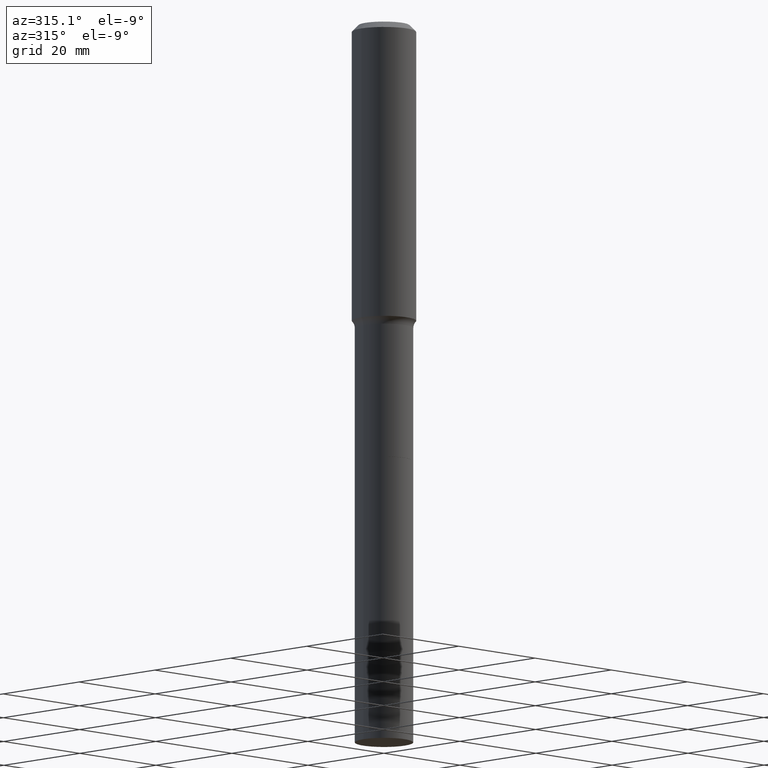
[diagram: clean part render]
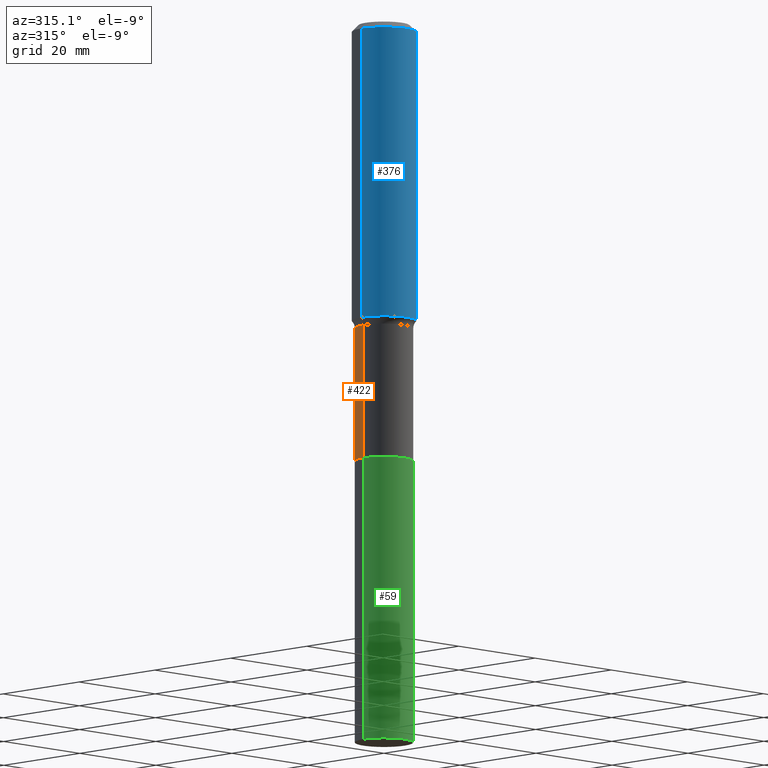
[diagram: same view with three faces highlighted in distinct colors, each labeled with its STEP entity id]
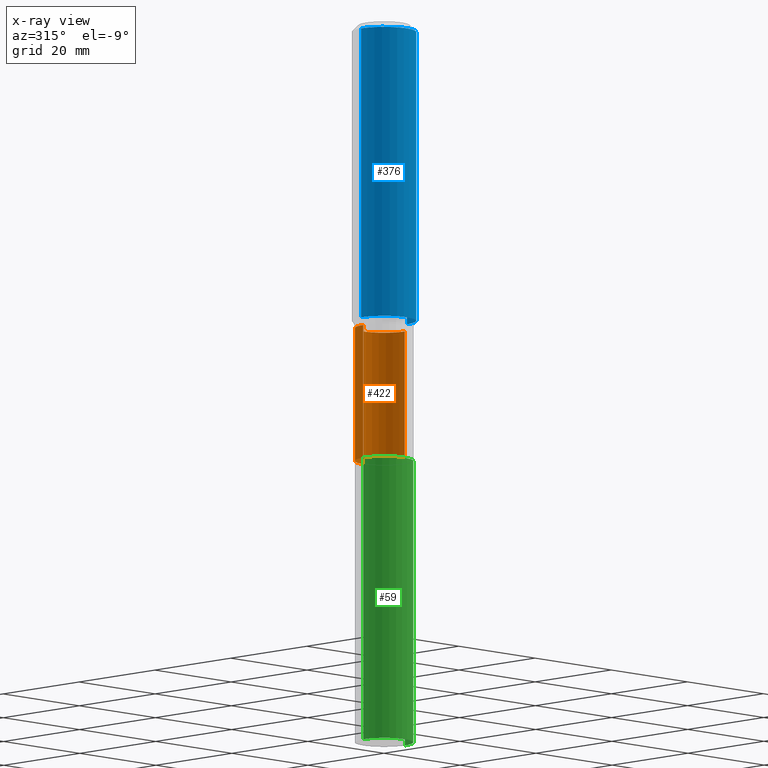
[diagram: x-ray of the same camera — body ghosted, the three highlighted faces saturated]
A machine part, auxiliary view with three faces highlighted in distinct colors.
The next image is the same camera in x-ray (body ghosted, the three faces saturated) — at least one of them is partly hidden behind the body in this view.
Their STEP definitions:

[orange] entity #422 — the highlighted cylindrical surface (edge-blend (fillet) strip) has radius 5.4496 mm, axis along (-0, 0, 1).
#12 = CIRCLE ( 'NONE', #315, 0.2145499999999999907 ) ;
#18 = ORIENTED_EDGE ( 'NONE', *, *, #265, .F. ) ;
#25 = EDGE_CURVE ( 'NONE', #500, #95, #401, .T. ) ;
#52 = CARTESIAN_POINT ( 'NONE',  ( 7.895196040768714687E-29, -1.127224750245509741E-14, -3.228500000000000814 ) ) ;
#64 = EDGE_CURVE ( 'NONE', #146, #497, #190, .T. ) ;
#87 = CARTESIAN_POINT ( 'NONE',  ( -0.2145499999999998797, -8.029096373836263825E-15, -2.244000000000000217 ) ) ;
#95 = VERTEX_POINT ( 'NONE', #87 ) ;
#130 = DIRECTION ( 'NONE',  ( -2.445468806185136597E-29, 3.491481338843145583E-15, 1.000000000000000000 ) ) ;
#142 = DIRECTION ( 'NONE',  ( -2.445468806185136597E-29, 3.491481338843145583E-15, 1.000000000000000000 ) ) ;
#146 = VERTEX_POINT ( 'NONE', #518 ) ;
#182 = DIRECTION ( 'NONE',  ( -2.445468806185136597E-29, 3.491481338843145583E-15, 1.000000000000000000 ) ) ;
#184 = CARTESIAN_POINT ( 'NONE',  ( 5.487632001079447088E-29, -7.834884124364020406E-15, -2.244000000000000217 ) ) ;
#190 = LINE ( 'NONE', #354, #414 ) ;
#193 = CARTESIAN_POINT ( 'NONE',  ( -0.2145499999999999630, -8.029096373836262248E-15, -3.228500000000000814 ) ) ;
#199 = DIRECTION ( 'NONE',  ( -2.445468806185136877E-29, 3.491481338843145188E-15, 1.000000000000000000 ) ) ;
#230 = DIRECTION ( 'NONE',  ( 1.000000000000000000, -6.982962677686263555E-15, 0.000000000000000000 ) ) ;
#261 = CARTESIAN_POINT ( 'NONE',  ( 0.000000000000000000, 0.000000000000000000, 0.000000000000000000 ) ) ;
#265 = EDGE_CURVE ( 'NONE', #497, #95, #438, .T. ) ;
#272 = ORIENTED_EDGE ( 'NONE', *, *, #363, .T. ) ;
#315 = AXIS2_PLACEMENT_3D ( 'NONE', #52, #142, #454 ) ;
#338 = FACE_OUTER_BOUND ( 'NONE', #395, .T. ) ;
#352 = ORIENTED_EDGE ( 'NONE', *, *, #25, .T. ) ;
#354 = CARTESIAN_POINT ( 'NONE',  ( 0.2145499999999999352, -1.498194642497588005E-15, 1.046183727247017794E-29 ) ) ;
#363 = EDGE_CURVE ( 'NONE', #146, #500, #12, .T. ) ;
#390 = ORIENTED_EDGE ( 'NONE', *, *, #64, .F. ) ;
#395 = EDGE_LOOP ( 'NONE', ( #272, #352, #18, #390 ) ) ;
#397 = CARTESIAN_POINT ( 'NONE',  ( -0.2145499999999999352, 1.524469439573294488E-15, -1.055357523614189686E-29 ) ) ;
#398 = AXIS2_PLACEMENT_3D ( 'NONE', #261, #130, #417 ) ;
#401 = LINE ( 'NONE', #397, #483 ) ;
#414 = VECTOR ( 'NONE', #199, 39.37007874015748143 ) ;
#417 = DIRECTION ( 'NONE',  ( 1.000000000000000000, -6.982962677686266711E-15, 4.876176775795936353E-29 ) ) ;
#421 = AXIS2_PLACEMENT_3D ( 'NONE', #184, #182, #230 ) ;
#422 = ADVANCED_FACE ( 'NONE', ( #338 ), #490, .T. ) ;
#438 = CIRCLE ( 'NONE', #421, 0.2145499999999998797 ) ;
#454 = DIRECTION ( 'NONE',  ( 1.000000000000000000, -6.982962677686264344E-15, 0.000000000000000000 ) ) ;
#474 = CARTESIAN_POINT ( 'NONE',  ( 0.2145499999999998797, -9.333078766861606044E-15, -2.244000000000000217 ) ) ;
#483 = VECTOR ( 'NONE', #514, 39.37007874015748143 ) ;
#490 = CYLINDRICAL_SURFACE ( 'NONE', #398, 0.2145499999999999352 ) ;
#497 = VERTEX_POINT ( 'NONE', #474 ) ;
#500 = VERTEX_POINT ( 'NONE', #193 ) ;
#514 = DIRECTION ( 'NONE',  ( -2.445468806185136877E-29, 3.491481338843145188E-15, 1.000000000000000000 ) ) ;
#518 = CARTESIAN_POINT ( 'NONE',  ( 0.2145499999999999907, -1.277044214495268620E-14, -3.228500000000000814 ) ) ;

[blue] entity #376 — the highlighted cylindrical surface (edge-blend (fillet) strip) has radius 5.9995 mm, axis along (-0, 0, 1).
#10 = DIRECTION ( 'NONE',  ( 1.000000000000000000, -6.982962677686266711E-15, 4.876176775795936353E-29 ) ) ;
#11 = ORIENTED_EDGE ( 'NONE', *, *, #303, .T. ) ;
#19 = CARTESIAN_POINT ( 'NONE',  ( 0.000000000000000000, 0.000000000000000000, 0.000000000000000000 ) ) ;
#47 = DIRECTION ( 'NONE',  ( -2.445468806185136877E-29, 3.491481338843145188E-15, 1.000000000000000000 ) ) ;
#49 = LINE ( 'NONE', #425, #288 ) ;
#120 = EDGE_CURVE ( 'NONE', #431, #279, #366, .T. ) ;
#132 = AXIS2_PLACEMENT_3D ( 'NONE', #430, #196, #236 ) ;
#180 = FACE_OUTER_BOUND ( 'NONE', #433, .T. ) ;
#185 = ORIENTED_EDGE ( 'NONE', *, *, #120, .F. ) ;
#186 = VECTOR ( 'NONE', #47, 39.37007874015748143 ) ;
#196 = DIRECTION ( 'NONE',  ( -2.445468806185136597E-29, 3.491481338843145583E-15, 1.000000000000000000 ) ) ;
#200 = AXIS2_PLACEMENT_3D ( 'NONE', #480, #287, #330 ) ;
#216 = CARTESIAN_POINT ( 'NONE',  ( 0.2362000000000002709, -9.293172459752528663E-15, -2.189270379378770226 ) ) ;
#217 = CARTESIAN_POINT ( 'NONE',  ( 0.2361999999999999933, -1.814313362916447440E-15, -0.04724000000000030258 ) ) ;
#225 = CARTESIAN_POINT ( 'NONE',  ( -0.2362000000000001321, 1.678301941865357577E-15, -1.161852468318209457E-29 ) ) ;
#232 = VERTEX_POINT ( 'NONE', #216 ) ;
#236 = DIRECTION ( 'NONE',  ( 1.000000000000000000, -6.982962677686269077E-15, 0.000000000000000000 ) ) ;
#258 = CIRCLE ( 'NONE', #132, 0.2362000000000002709 ) ;
#279 = VERTEX_POINT ( 'NONE', #217 ) ;
#287 = DIRECTION ( 'NONE',  ( -2.445468806185136597E-29, 3.491481338843145583E-15, 1.000000000000000000 ) ) ;
#288 = VECTOR ( 'NONE', #494, 39.37007874015748143 ) ;
#303 = EDGE_CURVE ( 'NONE', #232, #279, #49, .T. ) ;
#306 = AXIS2_PLACEMENT_3D ( 'NONE', #19, #496, #10 ) ;
#330 = DIRECTION ( 'NONE',  ( 1.000000000000000000, -6.982962677686266711E-15, 0.000000000000000000 ) ) ;
#341 = LINE ( 'NONE', #225, #186 ) ;
#343 = CYLINDRICAL_SURFACE ( 'NONE', #306, 0.2362000000000001321 ) ;
#348 = CARTESIAN_POINT ( 'NONE',  ( -0.2362000000000002709, -5.965494733417672588E-15, -2.189270379378770226 ) ) ;
#362 = VERTEX_POINT ( 'NONE', #348 ) ;
#366 = CIRCLE ( 'NONE', #200, 0.2361999999999999933 ) ;
#376 = ADVANCED_FACE ( 'NONE', ( #180 ), #343, .T. ) ;
#377 = CARTESIAN_POINT ( 'NONE',  ( -0.2361999999999999933, -2.226065184999632371E-15, -0.04724000000000030258 ) ) ;
#392 = ORIENTED_EDGE ( 'NONE', *, *, #488, .T. ) ;
#393 = EDGE_CURVE ( 'NONE', #362, #431, #341, .T. ) ;
#425 = CARTESIAN_POINT ( 'NONE',  ( 0.2362000000000001321, -1.649375784469497117E-15, 1.151752954443000789E-29 ) ) ;
#430 = CARTESIAN_POINT ( 'NONE',  ( 5.353792421075882419E-29, -7.643796675283030560E-15, -2.189270379378770226 ) ) ;
#431 = VERTEX_POINT ( 'NONE', #377 ) ;
#433 = EDGE_LOOP ( 'NONE', ( #495, #392, #11, #185 ) ) ;
#480 = CARTESIAN_POINT ( 'NONE',  ( 1.155239464041865857E-30, -1.649375784469512352E-16, -0.04724000000000030258 ) ) ;
#488 = EDGE_CURVE ( 'NONE', #362, #232, #258, .T. ) ;
#494 = DIRECTION ( 'NONE',  ( -2.445468806185136877E-29, 3.491481338843145188E-15, 1.000000000000000000 ) ) ;
#495 = ORIENTED_EDGE ( 'NONE', *, *, #393, .F. ) ;
#496 = DIRECTION ( 'NONE',  ( -2.445468806185136597E-29, 3.491481338843145583E-15, 1.000000000000000000 ) ) ;

[green] entity #59 — the highlighted cylindrical surface (edge-blend (fillet) strip) has radius 5.4496 mm, axis along (-0, 0, 1).
#7 = EDGE_CURVE ( 'NONE', #387, #268, #246, .T. ) ;
#8 = DIRECTION ( 'NONE',  ( -2.445468806185136597E-29, 3.491481338843145583E-15, 1.000000000000000000 ) ) ;
#14 = CARTESIAN_POINT ( 'NONE',  ( 0.2145500000000003515, -2.005541795844891010E-14, -5.315000000000000391 ) ) ;
#24 = CARTESIAN_POINT ( 'NONE',  ( 7.896418775171807488E-29, -1.127399324312451970E-14, -3.229000000000000981 ) ) ;
#27 = AXIS2_PLACEMENT_3D ( 'NONE', #293, #8, #36 ) ;
#36 = DIRECTION ( 'NONE',  ( 1.000000000000000000, -6.982962677686261977E-15, 0.000000000000000000 ) ) ;
#43 = DIRECTION ( 'NONE',  ( 1.000000000000000000, -6.982962677686264344E-15, 0.000000000000000000 ) ) ;
#57 = CARTESIAN_POINT ( 'NONE',  ( -0.2145500000000003793, -1.339113883996461832E-14, -5.315000000000000391 ) ) ;
#59 = ADVANCED_FACE ( 'NONE', ( #475 ), #111, .T. ) ;
#66 = ORIENTED_EDGE ( 'NONE', *, *, #219, .T. ) ;
#92 = CARTESIAN_POINT ( 'NONE',  ( -0.2145499999999999907, -1.339113883996462306E-14, -3.229000000000000981 ) ) ;
#107 = EDGE_CURVE ( 'NONE', #268, #378, #274, .T. ) ;
#111 = CYLINDRICAL_SURFACE ( 'NONE', #396, 0.2145500000000001850 ) ;
#119 = CARTESIAN_POINT ( 'NONE',  ( 0.2145500000000001850, -1.277218788562211007E-14, -3.229000000000000981 ) ) ;
#127 = LINE ( 'NONE', #119, #374 ) ;
#145 = EDGE_CURVE ( 'NONE', #387, #350, #358, .T. ) ;
#169 = AXIS2_PLACEMENT_3D ( 'NONE', #256, #412, #43 ) ;
#173 = DIRECTION ( 'NONE',  ( -2.445468806185136877E-29, 3.491481338843145188E-15, 1.000000000000000000 ) ) ;
#183 = ORIENTED_EDGE ( 'NONE', *, *, #107, .F. ) ;
#213 = VECTOR ( 'NONE', #511, 39.37007874015748143 ) ;
#219 = EDGE_CURVE ( 'NONE', #350, #378, #127, .T. ) ;
#246 = LINE ( 'NONE', #472, #213 ) ;
#256 = CARTESIAN_POINT ( 'NONE',  ( 7.896418775171807488E-29, -1.127399324312451970E-14, -3.229000000000000981 ) ) ;
#268 = VERTEX_POINT ( 'NONE', #92 ) ;
#274 = CIRCLE ( 'NONE', #169, 0.2145499999999999907 ) ;
#283 = EDGE_LOOP ( 'NONE', ( #507, #424, #66, #183 ) ) ;
#293 = CARTESIAN_POINT ( 'NONE',  ( 1.299766670487400218E-28, -1.855722331595131973E-14, -5.315000000000000391 ) ) ;
#350 = VERTEX_POINT ( 'NONE', #14 ) ;
#358 = CIRCLE ( 'NONE', #27, 0.2145500000000003515 ) ;
#374 = VECTOR ( 'NONE', #173, 39.37007874015748143 ) ;
#378 = VERTEX_POINT ( 'NONE', #423 ) ;
#387 = VERTEX_POINT ( 'NONE', #57 ) ;
#396 = AXIS2_PLACEMENT_3D ( 'NONE', #24, #437, #477 ) ;
#412 = DIRECTION ( 'NONE',  ( -2.445468806185136597E-29, 3.491481338843145583E-15, 1.000000000000000000 ) ) ;
#423 = CARTESIAN_POINT ( 'NONE',  ( 0.2145499999999999907, -1.277218788562210849E-14, -3.229000000000000981 ) ) ;
#424 = ORIENTED_EDGE ( 'NONE', *, *, #145, .T. ) ;
#437 = DIRECTION ( 'NONE',  ( -2.445468806185136597E-29, 3.491481338843145583E-15, 1.000000000000000000 ) ) ;
#472 = CARTESIAN_POINT ( 'NONE',  ( -0.2145500000000001850, -9.749523803551223040E-15, -3.229000000000000981 ) ) ;
#475 = FACE_OUTER_BOUND ( 'NONE', #283, .T. ) ;
#477 = DIRECTION ( 'NONE',  ( 1.000000000000000000, -6.982962677686267499E-15, 0.000000000000000000 ) ) ;
#507 = ORIENTED_EDGE ( 'NONE', *, *, #7, .F. ) ;
#511 = DIRECTION ( 'NONE',  ( -2.445468806185136877E-29, 3.491481338843145188E-15, 1.000000000000000000 ) ) ;